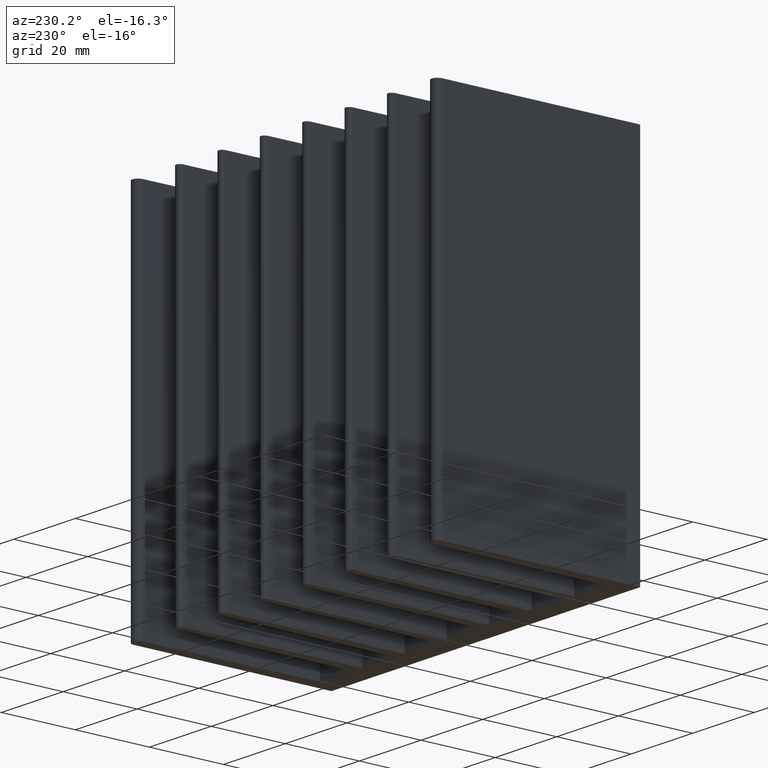
[diagram: clean part render]
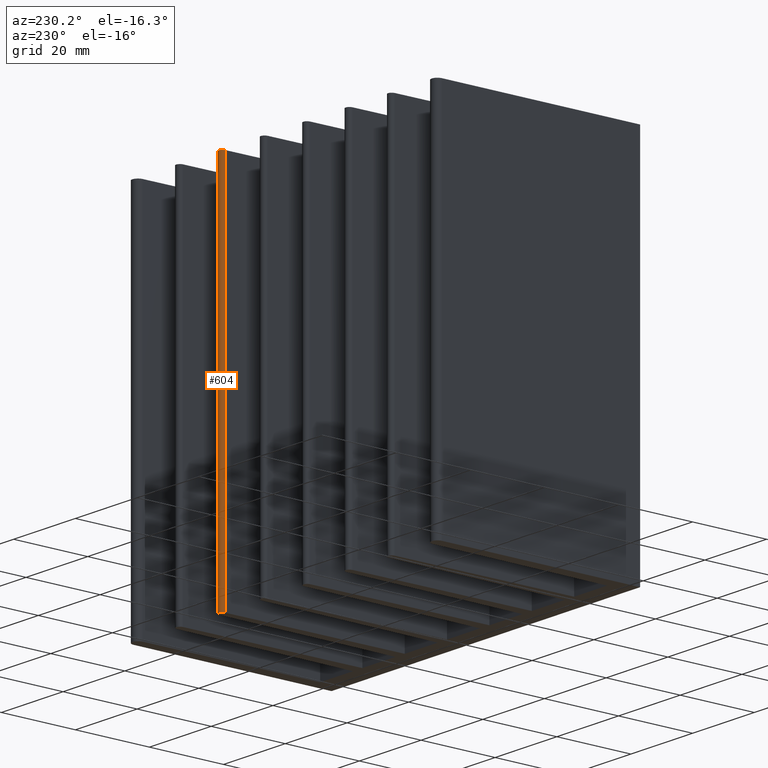
[diagram: same view with one face highlighted and labeled with its STEP entity id]
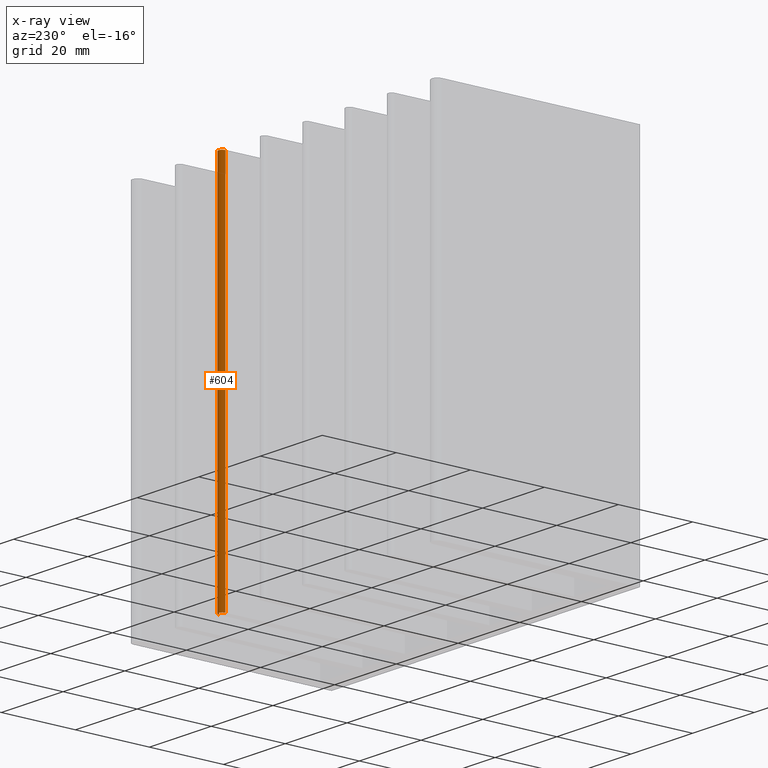
[diagram: x-ray of the same camera — body ghosted, the highlighted face saturated]
A machine part, auxiliary view. The second image highlights one B-rep face of the part: STEP entity #604.
The next image is the same camera in x-ray: the body ghosted, the highlighted face saturated — about 0% of this face is hidden behind the body in this view.
In plain terms, the highlighted cylindrical surface (edge-blend (fillet) strip) has radius 1 mm, axis along (-0, -0, -1).
Its self-contained STEP definition (entity closure, byte-faithful):
#3 = CIRCLE ( 'NONE', #1149, 1.000000000000049516 ) ;
#24 = DIRECTION ( 'NONE',  ( -1.000000000000000000, 0.0000000000000000000, 0.0000000000000000000 ) ) ;
#26 = DIRECTION ( 'NONE',  ( -0.0000000000000000000, -0.0000000000000000000, -1.000000000000000000 ) ) ;
#33 = CARTESIAN_POINT ( 'NONE',  ( 20.59499999999995978, 26.49999999999988631, 50.00000000000000000 ) ) ;
#43 = LINE ( 'NONE', #879, #954 ) ;
#245 = CARTESIAN_POINT ( 'NONE',  ( 19.59505423728904461, 26.51041497175127404, 50.00000000000000000 ) ) ;
#286 = EDGE_LOOP ( 'NONE', ( #353, #1048, #1078, #753 ) ) ;
#321 = CYLINDRICAL_SURFACE ( 'NONE', #1140, 1.000000000000049516 ) ;
#353 = ORIENTED_EDGE ( 'NONE', *, *, #923, .T. ) ;
#395 = VERTEX_POINT ( 'NONE', #245 ) ;
#399 = FACE_OUTER_BOUND ( 'NONE', #286, .T. ) ;
#604 = ADVANCED_FACE ( 'NONE', ( #399 ), #321, .T. ) ;
#753 = ORIENTED_EDGE ( 'NONE', *, *, #897, .T. ) ;
#805 = CARTESIAN_POINT ( 'NONE',  ( 21.59494576271088562, 26.51041497175127404, 50.00000000000000000 ) ) ;
#814 = VERTEX_POINT ( 'NONE', #805 ) ;
#877 = CARTESIAN_POINT ( 'NONE',  ( 19.59505423728904461, 26.51041497175127404, 50.00000000000000000 ) ) ;
#879 = CARTESIAN_POINT ( 'NONE',  ( 21.59494576271088562, 26.51041497175127404, 50.00000000000000000 ) ) ;
#881 = DIRECTION ( 'NONE',  ( -0.0000000000000000000, -0.0000000000000000000, -1.000000000000000000 ) ) ;
#893 = CARTESIAN_POINT ( 'NONE',  ( 19.59505423728904461, 26.51041497175127404, -50.00000000000000000 ) ) ;
#897 = EDGE_CURVE ( 'NONE', #814, #1169, #43, .T. ) ;
#898 = CARTESIAN_POINT ( 'NONE',  ( 20.59499999999995978, 26.49999999999988631, -50.00000000000000000 ) ) ;
#901 = DIRECTION ( 'NONE',  ( 0.0000000000000000000, 0.0000000000000000000, 1.000000000000000000 ) ) ;
#905 = DIRECTION ( 'NONE',  ( 1.000000000000000000, 0.0000000000000000000, 0.0000000000000000000 ) ) ;
#907 = DIRECTION ( 'NONE',  ( -0.0000000000000000000, -0.0000000000000000000, -1.000000000000000000 ) ) ;
#918 = CARTESIAN_POINT ( 'NONE',  ( 20.59499999999995978, 26.49999999999988631, 50.00000000000000000 ) ) ;
#922 = DIRECTION ( 'NONE',  ( 0.0000000000000000000, 0.0000000000000000000, 1.000000000000000000 ) ) ;
#923 = EDGE_CURVE ( 'NONE', #1169, #930, #3, .T. ) ;
#924 = DIRECTION ( 'NONE',  ( 1.000000000000000000, 0.0000000000000000000, 0.0000000000000000000 ) ) ;
#930 = VERTEX_POINT ( 'NONE', #893 ) ;
#946 = EDGE_CURVE ( 'NONE', #395, #930, #1157, .T. ) ;
#954 = VECTOR ( 'NONE', #881, 1000.000000000000000 ) ;
#955 = EDGE_CURVE ( 'NONE', #814, #395, #989, .T. ) ;
#989 = CIRCLE ( 'NONE', #1135, 1.000000000000049516 ) ;
#1042 = CARTESIAN_POINT ( 'NONE',  ( 21.59494576271088562, 26.51041497175127404, -50.00000000000000000 ) ) ;
#1048 = ORIENTED_EDGE ( 'NONE', *, *, #946, .F. ) ;
#1078 = ORIENTED_EDGE ( 'NONE', *, *, #955, .F. ) ;
#1135 = AXIS2_PLACEMENT_3D ( 'NONE', #918, #922, #924 ) ;
#1140 = AXIS2_PLACEMENT_3D ( 'NONE', #33, #26, #24 ) ;
#1149 = AXIS2_PLACEMENT_3D ( 'NONE', #898, #901, #905 ) ;
#1157 = LINE ( 'NONE', #877, #1171 ) ;
#1169 = VERTEX_POINT ( 'NONE', #1042 ) ;
#1171 = VECTOR ( 'NONE', #907, 1000.000000000000000 ) ;